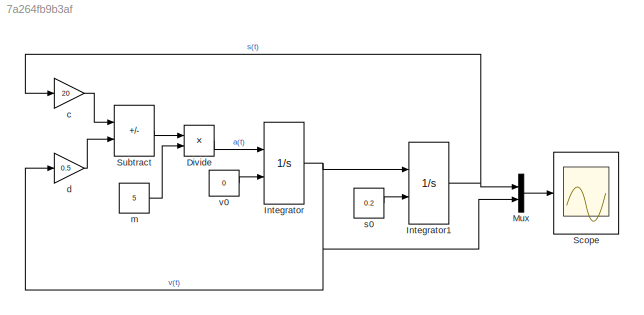
MODEL slx_7a264fb9b3af
KIND model
CONFIG AbsTol = auto
CONFIG EnableMultiTasking = off
CONFIG FixedStep = 0.00000001
CONFIG MaxStep = 1.0
CONFIG MinStep = 1e-1
CONFIG RelTol = 1e-3
CONFIG SampleTimeConstraint = Unconstrained
CONFIG SolverName = FixedStepAuto
CONFIG StartTime = 0.0
CONFIG StopTime = 50.0
BLOCK [Product] Divide
  Inputs = */
  Ports = [2, 1]
BLOCK [Integrator] Integrator
  InitialConditionSource = external
  Ports = [2, 1]
BLOCK [Integrator] Integrator1
  InitialConditionSource = external
  Ports = [2, 1]
BLOCK [Mux] Mux
  DisplayOption = bar
  Inputs = 2
  Ports = [2, 1]
BLOCK [Scope] Scope
  Floating = off
  NumInputPorts = 1
  Ports = [1]
  ScopeSpecificationString = Simulink.scopes.TimeScopeBlockCfg('CurrentConfiguration', extmgr.ConfigurationSet(extmgr.Configuration('Core','General UI',true),extmgr.Configuration('Core','Source UI',true),extmgr.Configuration('Sources','WiredSimulink',true,'DataLoggingMaxPoints','10000'),extmgr.Configuration('Visuals','Time Domain',true,'SerializedDisplays',{struct('MinYLimReal','-0.04855','MaxYLimReal','0.22762','YLabelReal',...<+1439ch>
BLOCK [Sum] Subtract
  IconShape = rectangular
  Inputs = --
  Ports = [2, 1]
BLOCK [Gain] c
  Gain = 20
BLOCK [Gain] d
  Gain = 0.5
BLOCK [Constant] m
  Value = 5
BLOCK [Constant] s0
  Value = 0.2
BLOCK [Constant] v0
  Value = 0
LINE Divide:1 -> Integrator:1
NET Integrator1:1 -> Mux:1, c:1
NET Integrator:1 -> Integrator1:1, Mux:2, d:1
LINE Mux:1 -> Scope:1
LINE Subtract:1 -> Divide:1
LINE c:1 -> Subtract:1
LINE d:1 -> Subtract:2
LINE m:1 -> Divide:2
LINE s0:1 -> Integrator1:2
LINE v0:1 -> Integrator:2
note: NET lines group one-source signal fan-out (src -> all destinations, sorted); 1:1 wires keep LINE
